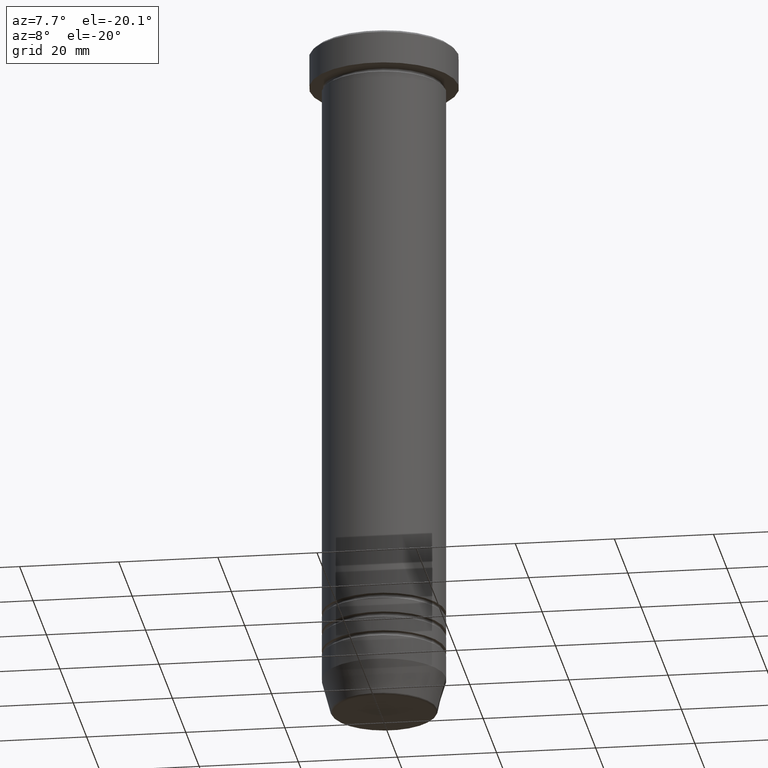
[diagram: clean part render]
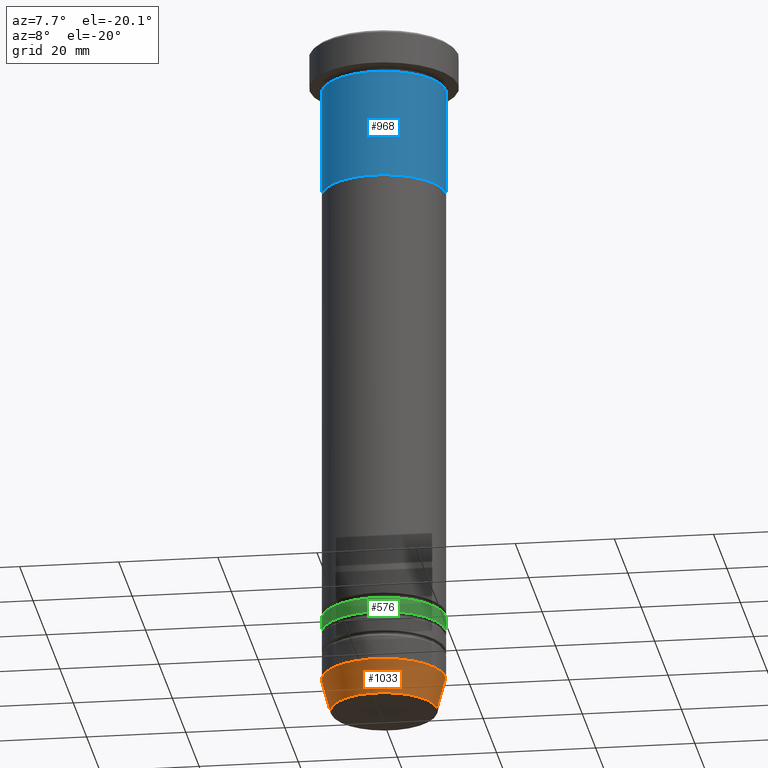
[diagram: same view with three faces highlighted in distinct colors, each labeled with its STEP entity id]
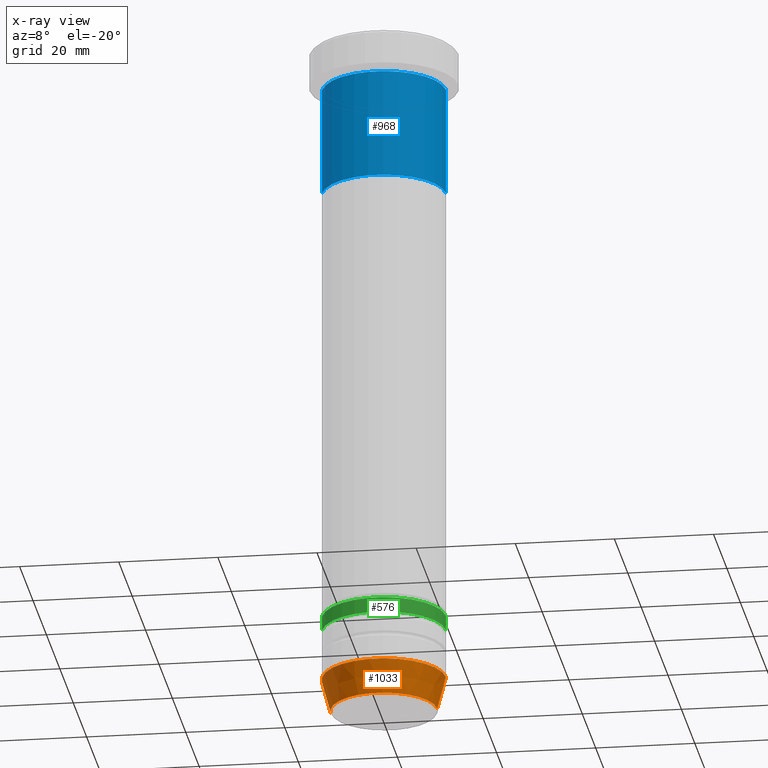
[diagram: x-ray of the same camera — body ghosted, the three highlighted faces saturated]
A machine part, auxiliary view with three faces highlighted in distinct colors.
The next image is the same camera in x-ray (body ghosted, the three faces saturated) — at least one of them is partly hidden behind the body in this view.
Their STEP definitions:

[orange] entity #1033 — the highlighted conical surface has half-angle 15 deg.
#45 = EDGE_CURVE ( 'NONE', #454, #762, #944, .T. ) ;
#69 = CARTESIAN_POINT ( 'NONE',  ( -12.50000000000000000, 1.530808498934191521E-15, -132.9999999999999716 ) ) ;
#86 = CARTESIAN_POINT ( 'NONE',  ( 12.50000000000000000, 0.000000000000000000, -132.9999999999999716 ) ) ;
#111 = VERTEX_POINT ( 'NONE', #69 ) ;
#119 = CARTESIAN_POINT ( 'NONE',  ( -10.62435565298212481, 1.301108314342764740E-15, -140.0000000000000000 ) ) ;
#133 = AXIS2_PLACEMENT_3D ( 'NONE', #680, #418, #832 ) ;
#143 = DIRECTION ( 'NONE',  ( -1.000000000000000000, 0.000000000000000000, 0.000000000000000000 ) ) ;
#239 = DIRECTION ( 'NONE',  ( -0.000000000000000000, -0.000000000000000000, 1.000000000000000000 ) ) ;
#273 = EDGE_CURVE ( 'NONE', #111, #762, #982, .T. ) ;
#280 = CARTESIAN_POINT ( 'NONE',  ( -10.72365507213717706, 1.422038742429749332E-15, -139.6294095225512990 ) ) ;
#288 = ORIENTED_EDGE ( 'NONE', *, *, #358, .F. ) ;
#291 = CARTESIAN_POINT ( 'NONE',  ( 0.000000000000000000, 0.000000000000000000, -140.0000000000000000 ) ) ;
#307 = ORIENTED_EDGE ( 'NONE', *, *, #45, .T. ) ;
#354 = ORIENTED_EDGE ( 'NONE', *, *, #273, .F. ) ;
#358 = EDGE_CURVE ( 'NONE', #776, #111, #690, .T. ) ;
#382 = CARTESIAN_POINT ( 'NONE',  ( 10.72365507213717706, 0.000000000000000000, -139.6294095225512990 ) ) ;
#418 = DIRECTION ( 'NONE',  ( -0.000000000000000000, -0.000000000000000000, 1.000000000000000000 ) ) ;
#454 = VERTEX_POINT ( 'NONE', #382 ) ;
#527 = DIRECTION ( 'NONE',  ( -0.2588190451025216277, 3.169619151431776035E-17, 0.9659258262890679791 ) ) ;
#592 = AXIS2_PLACEMENT_3D ( 'NONE', #291, #860, #866 ) ;
#625 = CARTESIAN_POINT ( 'NONE',  ( 10.62435565298212481, 0.000000000000000000, -140.0000000000000000 ) ) ;
#680 = CARTESIAN_POINT ( 'NONE',  ( 0.000000000000000000, 0.000000000000000000, -132.9999999999999716 ) ) ;
#690 = LINE ( 'NONE', #119, #914 ) ;
#727 = CONICAL_SURFACE ( 'NONE', #592, 10.62435565298212481, 0.2617993877991502960 ) ;
#762 = VERTEX_POINT ( 'NONE', #86 ) ;
#775 = VECTOR ( 'NONE', #885, 1000.000000000000114 ) ;
#776 = VERTEX_POINT ( 'NONE', #280 ) ;
#811 = EDGE_CURVE ( 'NONE', #776, #454, #993, .T. ) ;
#832 = DIRECTION ( 'NONE',  ( 1.000000000000000000, 0.000000000000000000, 0.000000000000000000 ) ) ;
#836 = ORIENTED_EDGE ( 'NONE', *, *, #811, .T. ) ;
#854 = FACE_OUTER_BOUND ( 'NONE', #1055, .T. ) ;
#860 = DIRECTION ( 'NONE',  ( -0.000000000000000000, -0.000000000000000000, 1.000000000000000000 ) ) ;
#866 = DIRECTION ( 'NONE',  ( 1.000000000000000000, 0.000000000000000000, 0.000000000000000000 ) ) ;
#885 = DIRECTION ( 'NONE',  ( 0.2588190451025216277, 0.000000000000000000, 0.9659258262890679791 ) ) ;
#911 = AXIS2_PLACEMENT_3D ( 'NONE', #1059, #239, #143 ) ;
#914 = VECTOR ( 'NONE', #527, 1000.000000000000114 ) ;
#944 = LINE ( 'NONE', #625, #775 ) ;
#982 = CIRCLE ( 'NONE', #133, 12.50000000000000000 ) ;
#993 = CIRCLE ( 'NONE', #911, 10.72365507213717706 ) ;
#1033 = ADVANCED_FACE ( 'NONE', ( #854 ), #727, .T. ) ;
#1055 = EDGE_LOOP ( 'NONE', ( #288, #836, #307, #354 ) ) ;
#1059 = CARTESIAN_POINT ( 'NONE',  ( 0.000000000000000000, 0.000000000000000000, -139.6294095225512990 ) ) ;

[blue] entity #968 — the highlighted cylindrical surface (partial cylindrical patch) has radius 12.5 mm, axis along (-0, -0, 1).
#6 = AXIS2_PLACEMENT_3D ( 'NONE', #744, #666, #922 ) ;
#18 = CARTESIAN_POINT ( 'NONE',  ( -12.50000000000000000, 1.530808498934191521E-15, -30.00000000000000000 ) ) ;
#41 = DIRECTION ( 'NONE',  ( 1.000000000000000000, 0.000000000000000000, 0.000000000000000000 ) ) ;
#61 = LINE ( 'NONE', #71, #630 ) ;
#71 = CARTESIAN_POINT ( 'NONE',  ( 12.50000000000000000, 0.000000000000000000, 0.000000000000000000 ) ) ;
#85 = VERTEX_POINT ( 'NONE', #985 ) ;
#89 = CYLINDRICAL_SURFACE ( 'NONE', #961, 12.50000000000000000 ) ;
#100 = ORIENTED_EDGE ( 'NONE', *, *, #469, .T. ) ;
#242 = ORIENTED_EDGE ( 'NONE', *, *, #277, .F. ) ;
#277 = EDGE_CURVE ( 'NONE', #85, #525, #966, .T. ) ;
#338 = DIRECTION ( 'NONE',  ( -0.000000000000000000, -0.000000000000000000, 1.000000000000000000 ) ) ;
#343 = ORIENTED_EDGE ( 'NONE', *, *, #345, .F. ) ;
#345 = EDGE_CURVE ( 'NONE', #683, #85, #496, .T. ) ;
#400 = CARTESIAN_POINT ( 'NONE',  ( 12.50000000000000000, 0.000000000000000000, -8.000000000000000000 ) ) ;
#409 = VECTOR ( 'NONE', #659, 1000.000000000000000 ) ;
#439 = CARTESIAN_POINT ( 'NONE',  ( 0.000000000000000000, 0.000000000000000000, -30.00000000000000000 ) ) ;
#469 = EDGE_CURVE ( 'NONE', #683, #668, #663, .T. ) ;
#496 = LINE ( 'NONE', #826, #409 ) ;
#525 = VERTEX_POINT ( 'NONE', #400 ) ;
#549 = DIRECTION ( 'NONE',  ( -0.000000000000000000, -0.000000000000000000, 1.000000000000000000 ) ) ;
#581 = DIRECTION ( 'NONE',  ( 1.000000000000000000, 0.000000000000000000, 0.000000000000000000 ) ) ;
#609 = ORIENTED_EDGE ( 'NONE', *, *, #841, .T. ) ;
#630 = VECTOR ( 'NONE', #549, 1000.000000000000000 ) ;
#659 = DIRECTION ( 'NONE',  ( -0.000000000000000000, -0.000000000000000000, 1.000000000000000000 ) ) ;
#663 = CIRCLE ( 'NONE', #964, 12.50000000000000000 ) ;
#666 = DIRECTION ( 'NONE',  ( -0.000000000000000000, -0.000000000000000000, 1.000000000000000000 ) ) ;
#668 = VERTEX_POINT ( 'NONE', #992 ) ;
#683 = VERTEX_POINT ( 'NONE', #18 ) ;
#734 = FACE_OUTER_BOUND ( 'NONE', #865, .T. ) ;
#744 = CARTESIAN_POINT ( 'NONE',  ( 0.000000000000000000, 0.000000000000000000, -8.000000000000000000 ) ) ;
#752 = CARTESIAN_POINT ( 'NONE',  ( 0.000000000000000000, 0.000000000000000000, 0.000000000000000000 ) ) ;
#769 = DIRECTION ( 'NONE',  ( -0.000000000000000000, -0.000000000000000000, 1.000000000000000000 ) ) ;
#826 = CARTESIAN_POINT ( 'NONE',  ( -12.50000000000000000, 1.530808498934191521E-15, 0.000000000000000000 ) ) ;
#841 = EDGE_CURVE ( 'NONE', #668, #525, #61, .T. ) ;
#865 = EDGE_LOOP ( 'NONE', ( #343, #100, #609, #242 ) ) ;
#922 = DIRECTION ( 'NONE',  ( 1.000000000000000000, 0.000000000000000000, 0.000000000000000000 ) ) ;
#961 = AXIS2_PLACEMENT_3D ( 'NONE', #752, #338, #581 ) ;
#964 = AXIS2_PLACEMENT_3D ( 'NONE', #439, #769, #41 ) ;
#966 = CIRCLE ( 'NONE', #6, 12.50000000000000000 ) ;
#968 = ADVANCED_FACE ( 'NONE', ( #734 ), #89, .T. ) ;
#985 = CARTESIAN_POINT ( 'NONE',  ( -12.50000000000000000, 1.530808498934191521E-15, -8.000000000000000000 ) ) ;
#992 = CARTESIAN_POINT ( 'NONE',  ( 12.50000000000000000, 0.000000000000000000, -30.00000000000000000 ) ) ;

[green] entity #576 — the highlighted cylindrical surface (partial cylindrical patch) has radius 12.5 mm, axis along (-0, -0, 1).
#4 = FACE_OUTER_BOUND ( 'NONE', #696, .T. ) ;
#22 = EDGE_CURVE ( 'NONE', #577, #431, #294, .T. ) ;
#42 = CARTESIAN_POINT ( 'NONE',  ( 0.000000000000000000, 0.000000000000000000, -120.0000000000000000 ) ) ;
#68 = DIRECTION ( 'NONE',  ( 1.000000000000000000, 0.000000000000000000, 0.000000000000000000 ) ) ;
#80 = EDGE_CURVE ( 'NONE', #635, #431, #249, .T. ) ;
#104 = AXIS2_PLACEMENT_3D ( 'NONE', #42, #698, #1028 ) ;
#124 = ORIENTED_EDGE ( 'NONE', *, *, #895, .T. ) ;
#130 = ORIENTED_EDGE ( 'NONE', *, *, #753, .F. ) ;
#153 = CYLINDRICAL_SURFACE ( 'NONE', #713, 12.50000000000000000 ) ;
#249 = LINE ( 'NONE', #810, #852 ) ;
#294 = CIRCLE ( 'NONE', #104, 12.50000000000000000 ) ;
#301 = CARTESIAN_POINT ( 'NONE',  ( 0.000000000000000000, 0.000000000000000000, -123.0000000000000000 ) ) ;
#326 = DIRECTION ( 'NONE',  ( -0.000000000000000000, -0.000000000000000000, 1.000000000000000000 ) ) ;
#384 = DIRECTION ( 'NONE',  ( 1.000000000000000000, 0.000000000000000000, 0.000000000000000000 ) ) ;
#421 = ORIENTED_EDGE ( 'NONE', *, *, #80, .T. ) ;
#431 = VERTEX_POINT ( 'NONE', #871 ) ;
#432 = LINE ( 'NONE', #824, #978 ) ;
#468 = CARTESIAN_POINT ( 'NONE',  ( 0.000000000000000000, 0.000000000000000000, 0.000000000000000000 ) ) ;
#499 = DIRECTION ( 'NONE',  ( -0.000000000000000000, -0.000000000000000000, 1.000000000000000000 ) ) ;
#536 = CIRCLE ( 'NONE', #693, 12.49999999999999822 ) ;
#555 = DIRECTION ( 'NONE',  ( -0.000000000000000000, -0.000000000000000000, 1.000000000000000000 ) ) ;
#559 = DIRECTION ( 'NONE',  ( -0.000000000000000000, -0.000000000000000000, 1.000000000000000000 ) ) ;
#576 = ADVANCED_FACE ( 'NONE', ( #4 ), #153, .T. ) ;
#577 = VERTEX_POINT ( 'NONE', #648 ) ;
#578 = CARTESIAN_POINT ( 'NONE',  ( 12.49999999999999822, 0.000000000000000000, -123.0000000000000000 ) ) ;
#635 = VERTEX_POINT ( 'NONE', #578 ) ;
#648 = CARTESIAN_POINT ( 'NONE',  ( -12.50000000000000000, 1.530808498934191521E-15, -120.0000000000000000 ) ) ;
#693 = AXIS2_PLACEMENT_3D ( 'NONE', #301, #555, #384 ) ;
#696 = EDGE_LOOP ( 'NONE', ( #130, #124, #421, #867 ) ) ;
#698 = DIRECTION ( 'NONE',  ( -0.000000000000000000, -0.000000000000000000, 1.000000000000000000 ) ) ;
#713 = AXIS2_PLACEMENT_3D ( 'NONE', #468, #326, #68 ) ;
#753 = EDGE_CURVE ( 'NONE', #936, #577, #432, .T. ) ;
#810 = CARTESIAN_POINT ( 'NONE',  ( 12.50000000000000000, 0.000000000000000000, 0.000000000000000000 ) ) ;
#824 = CARTESIAN_POINT ( 'NONE',  ( -12.50000000000000000, 1.530808498934191521E-15, 0.000000000000000000 ) ) ;
#852 = VECTOR ( 'NONE', #559, 1000.000000000000000 ) ;
#867 = ORIENTED_EDGE ( 'NONE', *, *, #22, .F. ) ;
#871 = CARTESIAN_POINT ( 'NONE',  ( 12.50000000000000000, 0.000000000000000000, -120.0000000000000000 ) ) ;
#895 = EDGE_CURVE ( 'NONE', #936, #635, #536, .T. ) ;
#936 = VERTEX_POINT ( 'NONE', #970 ) ;
#970 = CARTESIAN_POINT ( 'NONE',  ( -12.49999999999999822, 1.530808498934191324E-15, -123.0000000000000000 ) ) ;
#978 = VECTOR ( 'NONE', #499, 1000.000000000000000 ) ;
#1028 = DIRECTION ( 'NONE',  ( 1.000000000000000000, 0.000000000000000000, 0.000000000000000000 ) ) ;